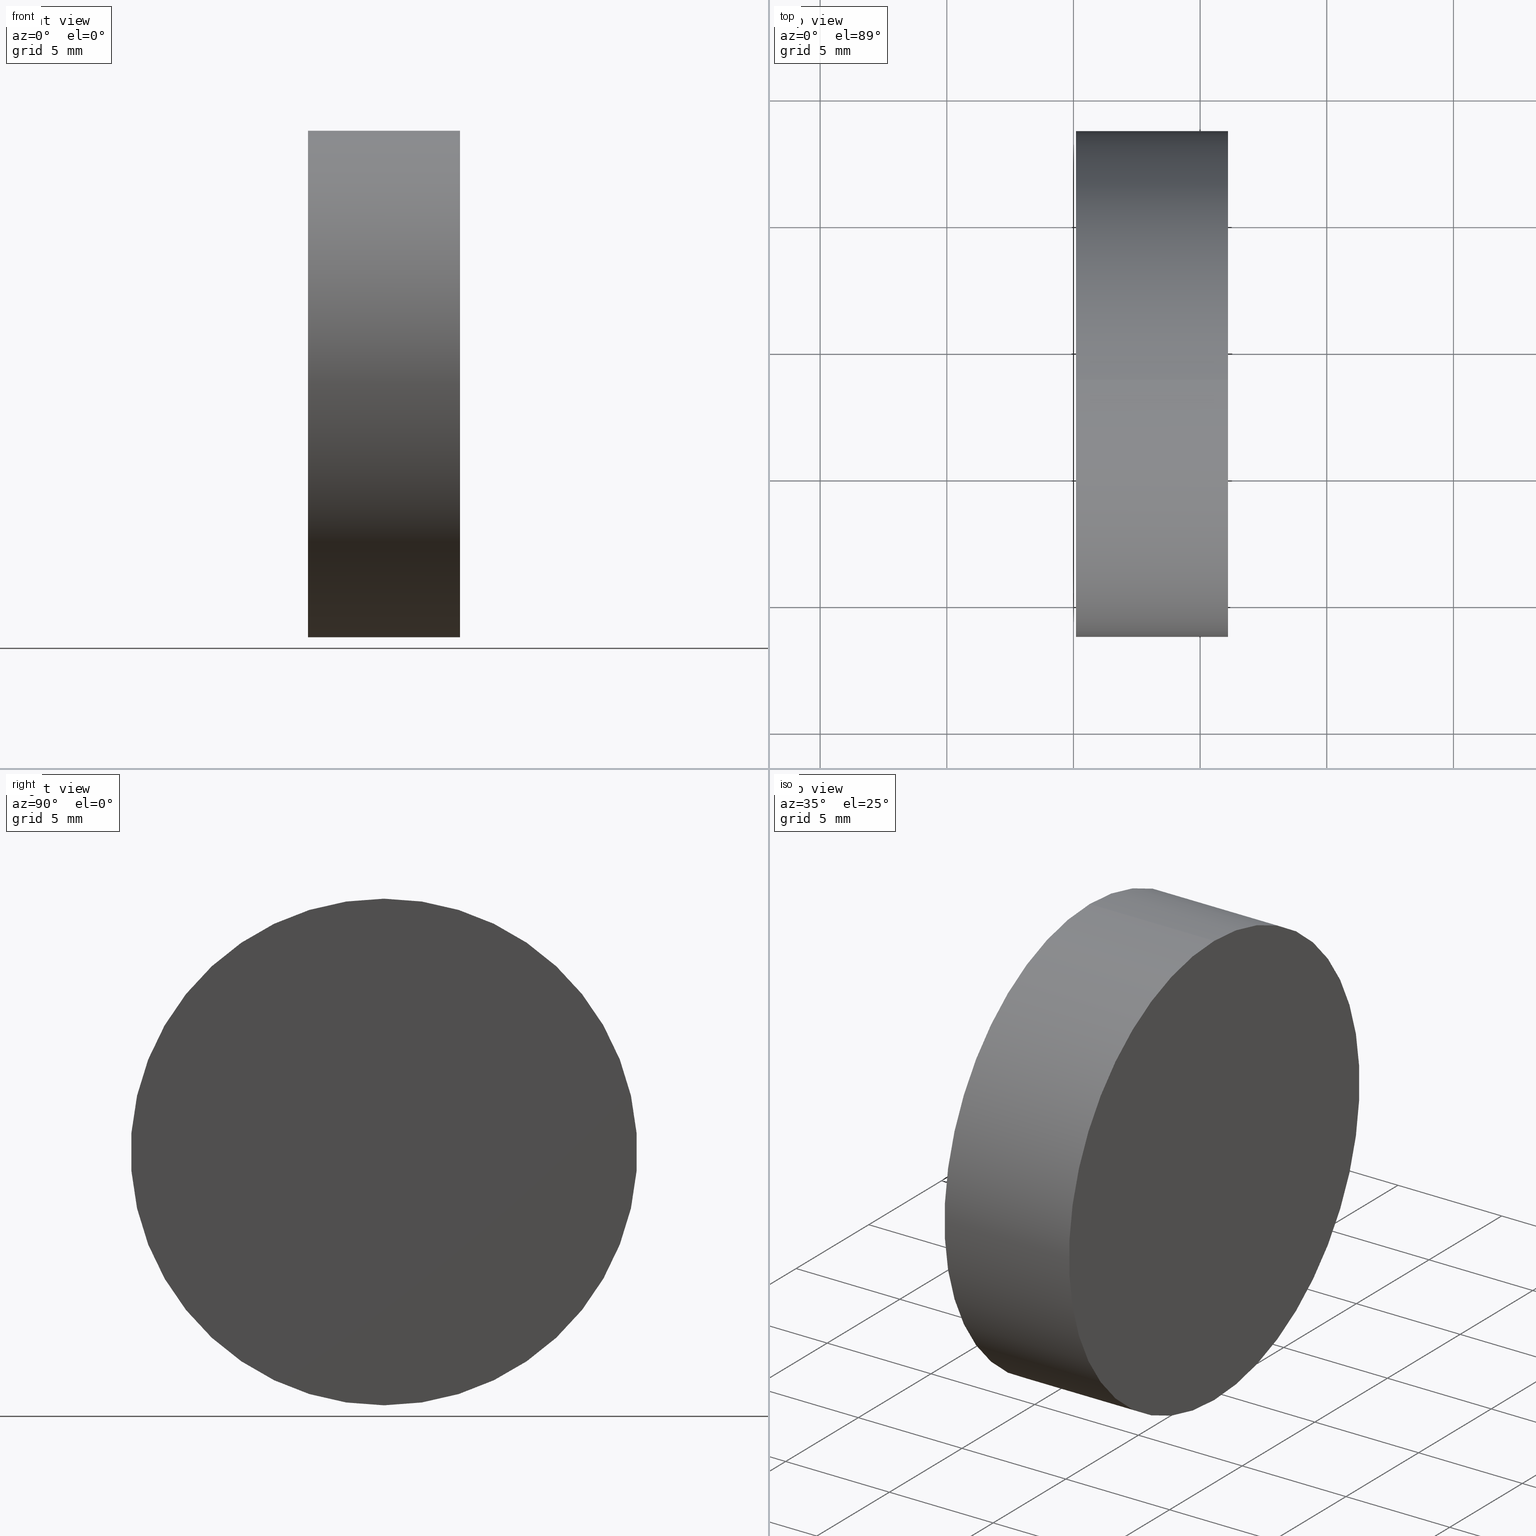
[diagram: canonical four-view strip — front | top / right | iso, engineering-drawing reading convention]
A machine part, canonical four-view strip (front | top / right | iso — engineering-drawing reading convention). The complete STEP part file that produces these views, byte-faithful:
ISO-10303-21;
HEADER;
FILE_DESCRIPTION (( 'STEP AP214' ),
    '1' );
FILE_NAME ('260000.STEP',
    '2019-07-18T02:39:13',
    ( '' ),
    ( '' ),
    'SwSTEP 2.0',
    'SolidWorks 2016',
    '' );
FILE_SCHEMA (( 'AUTOMOTIVE_DESIGN' ));
ENDSEC;

DATA;
#1 = VECTOR ( 'NONE', #36, 1000.000000000000000 ) ;
#2 = EDGE_CURVE ( 'NONE', #79, #40, #60, .T. ) ;
#3 = MECHANICAL_DESIGN_GEOMETRIC_PRESENTATION_REPRESENTATION (  '', ( #94 ), #13 ) ;
#4 = FACE_OUTER_BOUND ( 'NONE', #98, .T. ) ;
#5 = AXIS2_PLACEMENT_3D ( 'NONE', #118, #88, #33 ) ;
#6 = EDGE_CURVE ( 'NONE', #40, #79, #78, .T. ) ;
#7 = DIRECTION ( 'NONE',  ( -1.000000000000000000, -0.0000000000000000000, -0.0000000000000000000 ) ) ;
#8 = PLANE ( 'NONE',  #72 ) ;
#9 =( NAMED_UNIT ( * ) SI_UNIT ( $, .STERADIAN. ) SOLID_ANGLE_UNIT ( ) );
#10 = DIRECTION ( 'NONE',  ( -1.000000000000000000, -0.0000000000000000000, -0.0000000000000000000 ) ) ;
#11 = CYLINDRICAL_SURFACE ( 'NONE', #119, 10.00000000000000200 ) ;
#12 = PRODUCT_DEFINITION_SHAPE ( 'NONE', 'NONE',  #99 ) ;
#13 =( GEOMETRIC_REPRESENTATION_CONTEXT ( 3 ) GLOBAL_UNCERTAINTY_ASSIGNED_CONTEXT ( ( #39 ) ) GLOBAL_UNIT_ASSIGNED_CONTEXT ( ( #129, #73, #48 ) ) REPRESENTATION_CONTEXT ( 'NONE', 'WORKASPACE' ) );
#14 = AXIS2_PLACEMENT_3D ( 'NONE', #76, #17, #29 ) ;
#15 = FACE_OUTER_BOUND ( 'NONE', #22, .T. ) ;
#16 =( NAMED_UNIT ( * ) PLANE_ANGLE_UNIT ( ) SI_UNIT ( $, .RADIAN. ) );
#17 = DIRECTION ( 'NONE',  ( 0.0000000000000000000, 0.0000000000000000000, 1.000000000000000000 ) ) ;
#18 = SURFACE_STYLE_USAGE ( .BOTH. , #19 ) ;
#19 = SURFACE_SIDE_STYLE ('',( #37 ) ) ;
#20 = UNCERTAINTY_MEASURE_WITH_UNIT (LENGTH_MEASURE( 1.000000000000000100E-005 ), #116, 'distance_accuracy_value', 'NONE');
#21 = AXIS2_PLACEMENT_3D ( 'NONE', #105, #32, #55 ) ;
#22 = EDGE_LOOP ( 'NONE', ( #95, #140 ) ) ;
#23 = ORIENTED_EDGE ( 'NONE', *, *, #132, .T. ) ;
#24 = AXIS2_PLACEMENT_3D ( 'NONE', #86, #35, #117 ) ;
#25 = ORIENTED_EDGE ( 'NONE', *, *, #62, .F. ) ;
#26 = DIRECTION ( 'NONE',  ( -1.000000000000000000, -0.0000000000000000000, -0.0000000000000000000 ) ) ;
#27 = CIRCLE ( 'NONE', #5, 10.00000000000000200 ) ;
#28 = DIRECTION ( 'NONE',  ( -0.0000000000000000000, 0.0000000000000000000, 1.000000000000000000 ) ) ;
#29 = DIRECTION ( 'NONE',  ( 1.000000000000000000, 0.0000000000000000000, 0.0000000000000000000 ) ) ;
#30 = SURFACE_SIDE_STYLE ('',( #107 ) ) ;
#31 = FACE_OUTER_BOUND ( 'NONE', #64, .T. ) ;
#32 = DIRECTION ( 'NONE',  ( -1.000000000000000000, -0.0000000000000000000, -0.0000000000000000000 ) ) ;
#33 = DIRECTION ( 'NONE',  ( 0.0000000000000000000, 0.0000000000000000000, 1.000000000000000000 ) ) ;
#34 = VERTEX_POINT ( 'NONE', #100 ) ;
#35 = DIRECTION ( 'NONE',  ( -1.000000000000000000, -0.0000000000000000000, -0.0000000000000000000 ) ) ;
#36 = DIRECTION ( 'NONE',  ( -1.000000000000000000, -0.0000000000000000000, -0.0000000000000000000 ) ) ;
#37 = SURFACE_STYLE_FILL_AREA ( #137 ) ;
#38 = CYLINDRICAL_SURFACE ( 'NONE', #24, 10.00000000000000200 ) ;
#39 = UNCERTAINTY_MEASURE_WITH_UNIT (LENGTH_MEASURE( 1.000000000000000100E-005 ), #129, 'distance_accuracy_value', 'NONE');
#40 = VERTEX_POINT ( 'NONE', #123 ) ;
#41 = MECHANICAL_DESIGN_GEOMETRIC_PRESENTATION_REPRESENTATION (  '', ( #108 ), #125 ) ;
#42 = ORIENTED_EDGE ( 'NONE', *, *, #6, .T. ) ;
#43 = ADVANCED_FACE ( 'NONE', ( #15 ), #8, .F. ) ;
#44 = ADVANCED_FACE ( 'NONE', ( #31 ), #11, .T. ) ;
#45 = DIRECTION ( 'NONE',  ( 0.0000000000000000000, 0.0000000000000000000, 1.000000000000000000 ) ) ;
#46 = PLANE ( 'NONE',  #82 ) ;
#47 = SURFACE_STYLE_USAGE ( .BOTH. , #30 ) ;
#48 =( NAMED_UNIT ( * ) SI_UNIT ( $, .STERADIAN. ) SOLID_ANGLE_UNIT ( ) );
#49 = VECTOR ( 'NONE', #10, 1000.000000000000000 ) ;
#50 = MANIFOLD_SOLID_BREP ( '��ת1', #112 ) ;
#51 = ADVANCED_FACE ( 'NONE', ( #85 ), #46, .F. ) ;
#52 = PRESENTATION_STYLE_ASSIGNMENT (( #47 ) ) ;
#53 = FILL_AREA_STYLE ('',( #92 ) ) ;
#54 = ORIENTED_EDGE ( 'NONE', *, *, #69, .F. ) ;
#55 = DIRECTION ( 'NONE',  ( 0.0000000000000000000, 0.0000000000000000000, 1.000000000000000000 ) ) ;
#56 = DIRECTION ( 'NONE',  ( 0.0000000000000000000, 0.0000000000000000000, 1.000000000000000000 ) ) ;
#57 = APPLICATION_CONTEXT ( 'automotive_design' ) ;
#58 = LINE ( 'NONE', #126, #49 ) ;
#59 = ORIENTED_EDGE ( 'NONE', *, *, #6, .F. ) ;
#60 = CIRCLE ( 'NONE', #91, 10.00000000000000200 ) ;
#61 = CARTESIAN_POINT ( 'NONE',  ( 136.1008676357075700, 38.64658967450770900, 0.0000000000000000000 ) ) ;
#62 = EDGE_CURVE ( 'NONE', #34, #135, #130, .T. ) ;
#63 = PRODUCT_DEFINITION_CONTEXT ( 'detailed design', #57, 'design' ) ;
#64 = EDGE_LOOP ( 'NONE', ( #127, #74, #109, #25 ) ) ;
#65 = PRODUCT_DEFINITION_FORMATION_WITH_SPECIFIED_SOURCE ( '�κ�', '', #81, .NOT_KNOWN. ) ;
#66 = APPLICATION_CONTEXT ( 'automotive_design' ) ;
#67 = CARTESIAN_POINT ( 'NONE',  ( 136.1008676357075700, 38.64658967450770900, -10.00000000000000200 ) ) ;
#68 = COLOUR_RGB ( '',1.000000000000000000, 1.000000000000000000, 1.000000000000000000 ) ;
#69 = EDGE_CURVE ( 'NONE', #135, #34, #27, .T. ) ;
#70 = DIRECTION ( 'NONE',  ( 0.0000000000000000000, 0.0000000000000000000, 1.000000000000000000 ) ) ;
#71 = LINE ( 'NONE', #77, #1 ) ;
#72 = AXIS2_PLACEMENT_3D ( 'NONE', #84, #83, #97 ) ;
#73 =( NAMED_UNIT ( * ) PLANE_ANGLE_UNIT ( ) SI_UNIT ( $, .RADIAN. ) );
#74 = ORIENTED_EDGE ( 'NONE', *, *, #2, .T. ) ;
#75 =( LENGTH_UNIT ( ) NAMED_UNIT ( * ) SI_UNIT ( .MILLI., .METRE. ) );
#76 = CARTESIAN_POINT ( 'NONE',  ( 0.0000000000000000000, 0.0000000000000000000, 0.0000000000000000000 ) ) ;
#77 = CARTESIAN_POINT ( 'NONE',  ( 127.0004009963080200, 38.64658967450770900, 10.00000000000000200 ) ) ;
#78 = CIRCLE ( 'NONE', #136, 10.00000000000000200 ) ;
#79 = VERTEX_POINT ( 'NONE', #67 ) ;
#80 = ORIENTED_EDGE ( 'NONE', *, *, #2, .F. ) ;
#81 = PRODUCT ( '260000', '260000', '', ( #103 ) ) ;
#82 = AXIS2_PLACEMENT_3D ( 'NONE', #139, #115, #28 ) ;
#83 = DIRECTION ( 'NONE',  ( 1.000000000000000000, 0.0000000000000000000, 0.0000000000000000000 ) ) ;
#84 = CARTESIAN_POINT ( 'NONE',  ( 130.1008676357075700, 38.64658967450770900, 0.0000000000000000000 ) ) ;
#85 = FACE_OUTER_BOUND ( 'NONE', #114, .T. ) ;
#86 = CARTESIAN_POINT ( 'NONE',  ( 127.0004009963080200, 38.64658967450770900, 0.0000000000000000000 ) ) ;
#87 = APPLICATION_PROTOCOL_DEFINITION ( 'draft international standard', 'automotive_design', 1998, #57 ) ;
#88 = DIRECTION ( 'NONE',  ( -1.000000000000000000, -0.0000000000000000000, -0.0000000000000000000 ) ) ;
#89 = EDGE_CURVE ( 'NONE', #40, #135, #71, .T. ) ;
#90 =( NAMED_UNIT ( * ) PLANE_ANGLE_UNIT ( ) SI_UNIT ( $, .RADIAN. ) );
#91 = AXIS2_PLACEMENT_3D ( 'NONE', #61, #7, #45 ) ;
#92 = FILL_AREA_STYLE_COLOUR ( '', #68 ) ;
#93 = PRODUCT_RELATED_PRODUCT_CATEGORY ( 'part', '', ( #81 ) ) ;
#94 = STYLED_ITEM ( 'NONE', ( #52 ), #50 ) ;
#95 = ORIENTED_EDGE ( 'NONE', *, *, #69, .T. ) ;
#96 = ADVANCED_FACE ( 'NONE', ( #4 ), #38, .T. ) ;
#97 = DIRECTION ( 'NONE',  ( 0.0000000000000000000, 0.0000000000000000000, -1.000000000000000000 ) ) ;
#98 = EDGE_LOOP ( 'NONE', ( #42, #23, #54, #131 ) ) ;
#99 = PRODUCT_DEFINITION ( 'δ֪', '', #65, #63 ) ;
#100 = CARTESIAN_POINT ( 'NONE',  ( 130.1008676357075700, 38.64658967450770900, -10.00000000000000200 ) ) ;
#101 = PRESENTATION_LAYER_ASSIGNMENT (  '', '', ( #94 ) ) ;
#102 =( NAMED_UNIT ( * ) SI_UNIT ( $, .STERADIAN. ) SOLID_ANGLE_UNIT ( ) );
#103 = PRODUCT_CONTEXT ( 'NONE', #66, 'mechanical' ) ;
#104 = ADVANCED_BREP_SHAPE_REPRESENTATION ( '260000', ( #50, #14 ), #110 ) ;
#105 = CARTESIAN_POINT ( 'NONE',  ( 130.1008676357075700, 38.64658967450770900, 0.0000000000000000000 ) ) ;
#106 = APPLICATION_PROTOCOL_DEFINITION ( 'draft international standard', 'automotive_design', 1998, #66 ) ;
#107 = SURFACE_STYLE_FILL_AREA ( #53 ) ;
#108 = STYLED_ITEM ( 'NONE', ( #122 ), #104 ) ;
#109 = ORIENTED_EDGE ( 'NONE', *, *, #89, .T. ) ;
#110 =( GEOMETRIC_REPRESENTATION_CONTEXT ( 3 ) GLOBAL_UNCERTAINTY_ASSIGNED_CONTEXT ( ( #20 ) ) GLOBAL_UNIT_ASSIGNED_CONTEXT ( ( #116, #90, #9 ) ) REPRESENTATION_CONTEXT ( 'NONE', 'WORKASPACE' ) );
#111 = CARTESIAN_POINT ( 'NONE',  ( 136.1008676357075700, 38.64658967450770900, 0.0000000000000000000 ) ) ;
#112 = CLOSED_SHELL ( 'NONE', ( #96, #43, #44, #51 ) ) ;
#113 = CARTESIAN_POINT ( 'NONE',  ( 127.0004009963080200, 38.64658967450770900, 0.0000000000000000000 ) ) ;
#114 = EDGE_LOOP ( 'NONE', ( #59, #80 ) ) ;
#115 = DIRECTION ( 'NONE',  ( -1.000000000000000000, 0.0000000000000000000, -0.0000000000000000000 ) ) ;
#116 =( LENGTH_UNIT ( ) NAMED_UNIT ( * ) SI_UNIT ( .MILLI., .METRE. ) );
#117 = DIRECTION ( 'NONE',  ( 0.0000000000000000000, 0.0000000000000000000, 1.000000000000000000 ) ) ;
#118 = CARTESIAN_POINT ( 'NONE',  ( 130.1008676357075700, 38.64658967450770900, 0.0000000000000000000 ) ) ;
#119 = AXIS2_PLACEMENT_3D ( 'NONE', #113, #124, #56 ) ;
#120 = COLOUR_RGB ( '',1.000000000000000000, 1.000000000000000000, 1.000000000000000000 ) ;
#121 = PRESENTATION_LAYER_ASSIGNMENT (  '', '', ( #108 ) ) ;
#122 = PRESENTATION_STYLE_ASSIGNMENT (( #18 ) ) ;
#123 = CARTESIAN_POINT ( 'NONE',  ( 136.1008676357075700, 38.64658967450770900, 10.00000000000000200 ) ) ;
#124 = DIRECTION ( 'NONE',  ( -1.000000000000000000, -0.0000000000000000000, -0.0000000000000000000 ) ) ;
#125 =( GEOMETRIC_REPRESENTATION_CONTEXT ( 3 ) GLOBAL_UNCERTAINTY_ASSIGNED_CONTEXT ( ( #134 ) ) GLOBAL_UNIT_ASSIGNED_CONTEXT ( ( #75, #16, #102 ) ) REPRESENTATION_CONTEXT ( 'NONE', 'WORKASPACE' ) );
#126 = CARTESIAN_POINT ( 'NONE',  ( 127.0004009963080200, 38.64658967450770900, -10.00000000000000200 ) ) ;
#127 = ORIENTED_EDGE ( 'NONE', *, *, #132, .F. ) ;
#128 = FILL_AREA_STYLE_COLOUR ( '', #120 ) ;
#129 =( LENGTH_UNIT ( ) NAMED_UNIT ( * ) SI_UNIT ( .MILLI., .METRE. ) );
#130 = CIRCLE ( 'NONE', #21, 10.00000000000000200 ) ;
#131 = ORIENTED_EDGE ( 'NONE', *, *, #89, .F. ) ;
#132 = EDGE_CURVE ( 'NONE', #79, #34, #58, .T. ) ;
#133 = SHAPE_DEFINITION_REPRESENTATION ( #12, #104 ) ;
#134 = UNCERTAINTY_MEASURE_WITH_UNIT (LENGTH_MEASURE( 1.000000000000000100E-005 ), #75, 'distance_accuracy_value', 'NONE');
#135 = VERTEX_POINT ( 'NONE', #138 ) ;
#136 = AXIS2_PLACEMENT_3D ( 'NONE', #111, #26, #70 ) ;
#137 = FILL_AREA_STYLE ('',( #128 ) ) ;
#138 = CARTESIAN_POINT ( 'NONE',  ( 130.1008676357075700, 38.64658967450770900, 10.00000000000000200 ) ) ;
#139 = CARTESIAN_POINT ( 'NONE',  ( 136.1008676357075700, 48.64658967450770900, 0.0000000000000000000 ) ) ;
#140 = ORIENTED_EDGE ( 'NONE', *, *, #62, .T. ) ;
ENDSEC;
END-ISO-10303-21;
